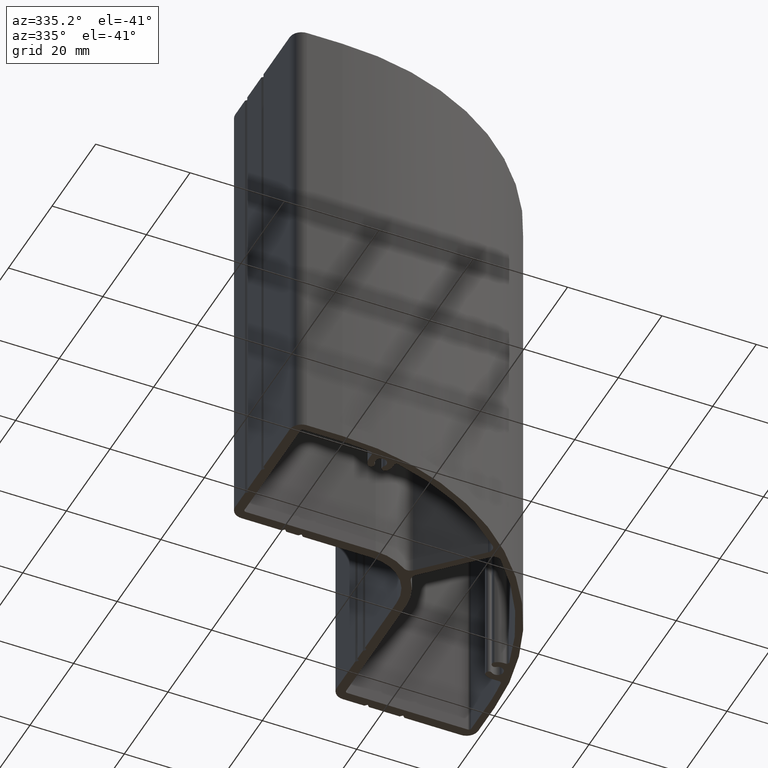
[diagram: clean part render]
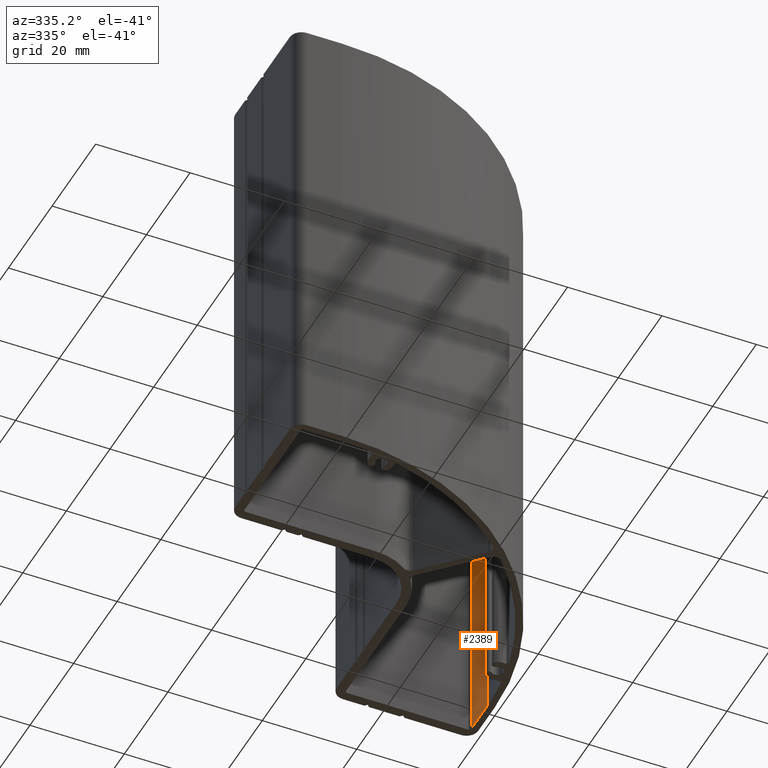
[diagram: same view with one face highlighted and labeled with its STEP entity id]
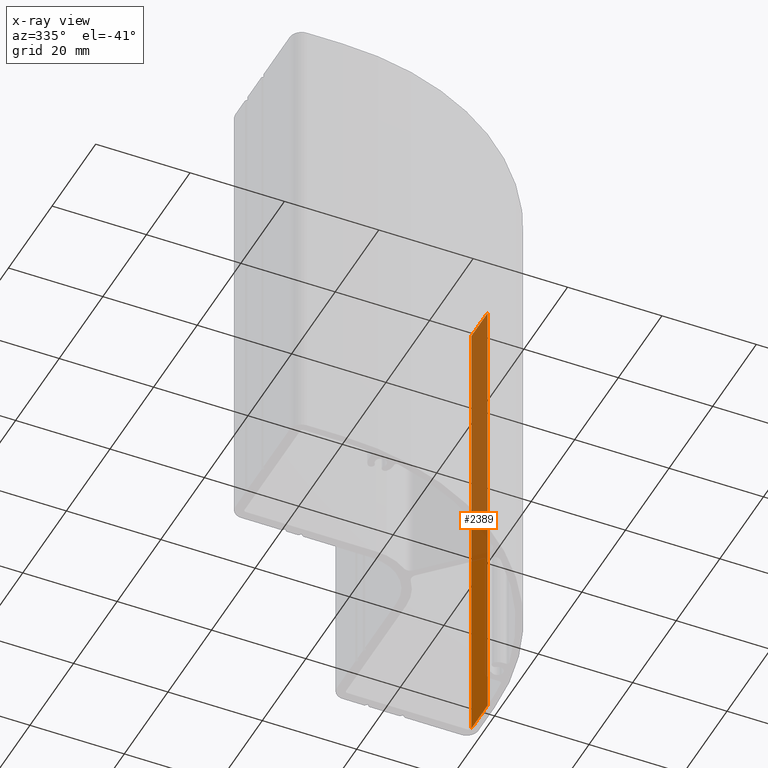
[diagram: x-ray of the same camera — body ghosted, the highlighted face saturated]
A machine part, auxiliary view. The second image highlights one B-rep face of the part: STEP entity #2389.
The next image is the same camera in x-ray: the body ghosted, the highlighted face saturated — about 60% of this face is hidden behind the body in this view.
In plain terms, the highlighted planar face has unit normal (-1, 0, 0).
Its self-contained STEP definition (entity closure, byte-faithful):
#1367=CARTESIAN_POINT('',(38.499999999954866,20.000000000050250,100.0));
#1368=VERTEX_POINT('',#1367);
#1369=CARTESIAN_POINT('',(38.499999999955548,27.500000000055252,100.0));
#1370=VERTEX_POINT('',#1369);
#1371=CARTESIAN_POINT('',(38.499999999954866,20.000000000050250,100.0));
#1372=DIRECTION('',(0.0,1.0,0.0));
#1373=VECTOR('',#1372,7.500000000005002);
#1374=LINE('',#1371,#1373);
#1375=EDGE_CURVE('',#1368,#1370,#1374,.T.);
#1799=CARTESIAN_POINT('',(38.499999999954866,20.000000000050250,0.0));
#1800=VERTEX_POINT('',#1799);
#1801=CARTESIAN_POINT('',(38.499999999955548,27.500000000055252,0.0));
#1802=VERTEX_POINT('',#1801);
#1803=CARTESIAN_POINT('',(38.499999999954866,20.000000000050250,0.0));
#1804=DIRECTION('',(0.0,1.0,0.0));
#1805=VECTOR('',#1804,7.500000000005002);
#1806=LINE('',#1803,#1805);
#1807=EDGE_CURVE('',#1800,#1802,#1806,.T.);
#2368=CARTESIAN_POINT('',(38.499999999954866,20.000000000050250,100.0));
#2369=DIRECTION('',(-1.0,0.0,0.0));
#2370=DIRECTION('',(0.0,1.0,0.0));
#2371=AXIS2_PLACEMENT_3D('',#2368,#2369,#2370);
#2372=PLANE('',#2371);
#2373=CARTESIAN_POINT('',(38.499999999955548,27.500000000055252,100.0));
#2374=DIRECTION('',(0.0,0.0,-1.0));
#2375=VECTOR('',#2374,100.0);
#2376=LINE('',#2373,#2375);
#2377=EDGE_CURVE('',#1370,#1802,#2376,.T.);
#2378=ORIENTED_EDGE('',*,*,#2377,.T.);
#2379=ORIENTED_EDGE('',*,*,#1807,.F.);
#2380=CARTESIAN_POINT('',(38.499999999954866,20.000000000050250,100.0));
#2381=DIRECTION('',(0.0,0.0,-1.0));
#2382=VECTOR('',#2381,100.0);
#2383=LINE('',#2380,#2382);
#2384=EDGE_CURVE('',#1368,#1800,#2383,.T.);
#2385=ORIENTED_EDGE('',*,*,#2384,.F.);
#2386=ORIENTED_EDGE('',*,*,#1375,.T.);
#2387=EDGE_LOOP('',(#2378,#2379,#2385,#2386));
#2388=FACE_OUTER_BOUND('',#2387,.T.);
#2389=ADVANCED_FACE('',(#2388),#2372,.T.);